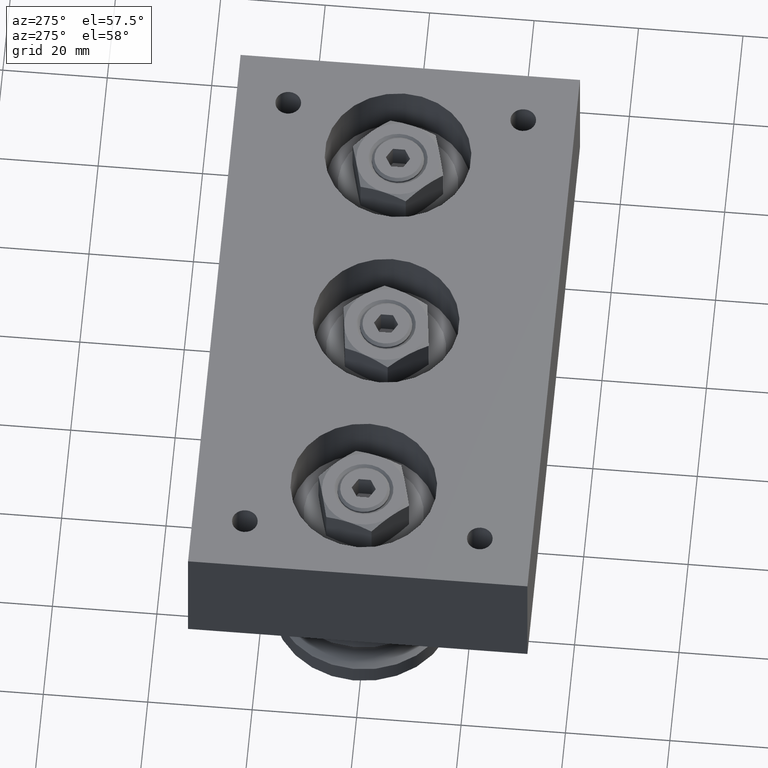
[diagram: clean part render]
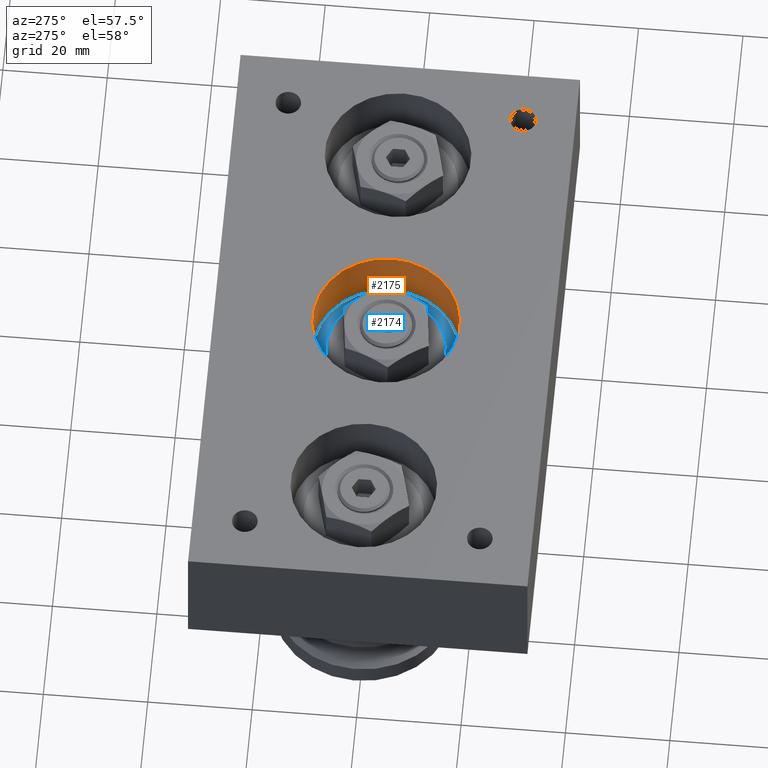
[diagram: same view with the hole feature highlighted: cylindrical wall and planar end face, labeled with their STEP entity ids]
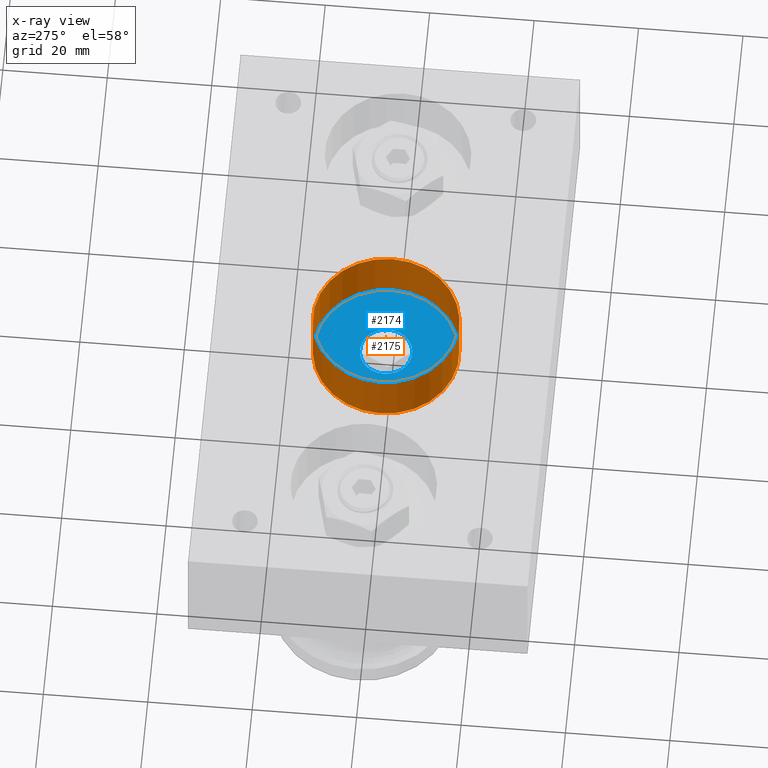
[diagram: x-ray of the same camera — body ghosted, the hole faces saturated]
A machine part, auxiliary view. The highlighted faces form one hole feature of diameter 28 mm: the cylindrical wall (entity #2175, orange) and its adjacent planar end face (entity #2174, blue) — they share a circular edge in the B-rep.
The next image is the same camera in x-ray (body ghosted, the hole faces saturated) — the bore reads through the body.
Wall:
#259=CYLINDRICAL_SURFACE('',#2537,14.);
#314=FACE_OUTER_BOUND('',#457,.T.);
#457=EDGE_LOOP('',(#1572,#1573,#1574,#1575));
#640=LINE('',#3607,#780);
#780=VECTOR('',#2875,14.);
#924=CIRCLE('',#2535,14.);
#926=CIRCLE('',#2538,14.);
#1061=VERTEX_POINT('',#3600);
#1063=VERTEX_POINT('',#3605);
#1261=EDGE_CURVE('',#1061,#1061,#924,.T.);
#1263=EDGE_CURVE('',#1063,#1063,#926,.T.);
#1264=EDGE_CURVE('',#1063,#1061,#640,.T.);
#1572=ORIENTED_EDGE('',*,*,#1263,.F.);
#1573=ORIENTED_EDGE('',*,*,#1264,.T.);
#1574=ORIENTED_EDGE('',*,*,#1261,.F.);
#1575=ORIENTED_EDGE('',*,*,#1264,.F.);
#2175=ADVANCED_FACE('',(#314),#259,.F.);
#2535=AXIS2_PLACEMENT_3D('',#3601,#2867,#2868);
#2537=AXIS2_PLACEMENT_3D('',#3604,#2871,#2872);
#2538=AXIS2_PLACEMENT_3D('',#3606,#2873,#2874);
#2867=DIRECTION('center_axis',(0.,0.,1.));
#2868=DIRECTION('ref_axis',(1.,0.,0.));
#2871=DIRECTION('center_axis',(0.,0.,1.));
#2872=DIRECTION('ref_axis',(1.,0.,0.));
#2873=DIRECTION('center_axis',(0.,0.,-1.));
#2874=DIRECTION('ref_axis',(1.,0.,0.));
#2875=DIRECTION('',(0.,0.,-1.));
#3600=CARTESIAN_POINT('',(-14.,-0.399999999999993,13.));
#3601=CARTESIAN_POINT('Origin',(0.,-0.399999999999991,13.));
#3604=CARTESIAN_POINT('Origin',(0.,-0.399999999999991,18.5));
#3605=CARTESIAN_POINT('',(-14.,-0.399999999999993,24.));
#3606=CARTESIAN_POINT('Origin',(0.,-0.399999999999991,24.));
#3607=CARTESIAN_POINT('',(-14.,-0.399999999999993,18.5));
End face:
#149=FACE_BOUND('',#456,.T.);
#192=PLANE('',#2534);
#313=FACE_OUTER_BOUND('',#455,.T.);
#455=EDGE_LOOP('',(#1570));
#456=EDGE_LOOP('',(#1571));
#924=CIRCLE('',#2535,14.);
#925=CIRCLE('',#2536,5.);
#1061=VERTEX_POINT('',#3600);
#1062=VERTEX_POINT('',#3602);
#1261=EDGE_CURVE('',#1061,#1061,#924,.T.);
#1262=EDGE_CURVE('',#1062,#1062,#925,.T.);
#1570=ORIENTED_EDGE('',*,*,#1261,.T.);
#1571=ORIENTED_EDGE('',*,*,#1262,.F.);
#2174=ADVANCED_FACE('',(#313,#149),#192,.T.);
#2534=AXIS2_PLACEMENT_3D('',#3599,#2865,#2866);
#2535=AXIS2_PLACEMENT_3D('',#3601,#2867,#2868);
#2536=AXIS2_PLACEMENT_3D('',#3603,#2869,#2870);
#2865=DIRECTION('center_axis',(0.,0.,1.));
#2866=DIRECTION('ref_axis',(1.,0.,0.));
#2867=DIRECTION('center_axis',(0.,0.,1.));
#2868=DIRECTION('ref_axis',(1.,0.,0.));
#2869=DIRECTION('center_axis',(0.,0.,1.));
#2870=DIRECTION('ref_axis',(1.,0.,0.));
#3599=CARTESIAN_POINT('Origin',(0.,-0.399999999999991,13.));
#3600=CARTESIAN_POINT('',(-14.,-0.399999999999993,13.));
#3601=CARTESIAN_POINT('Origin',(0.,-0.399999999999991,13.));
#3602=CARTESIAN_POINT('',(-5.,-0.399999999999992,13.));
#3603=CARTESIAN_POINT('Origin',(0.,-0.399999999999991,13.));